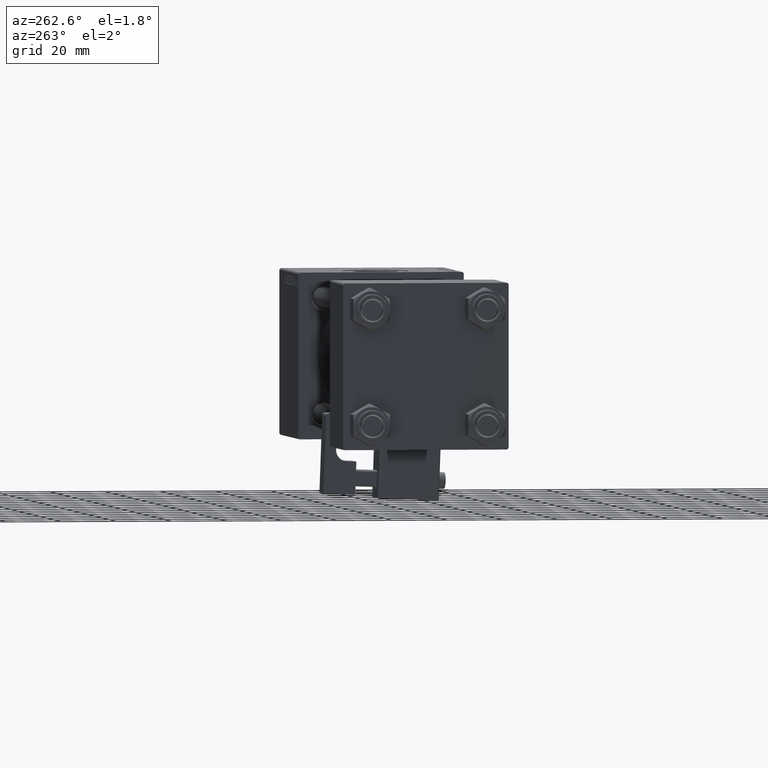
[diagram: clean part render]
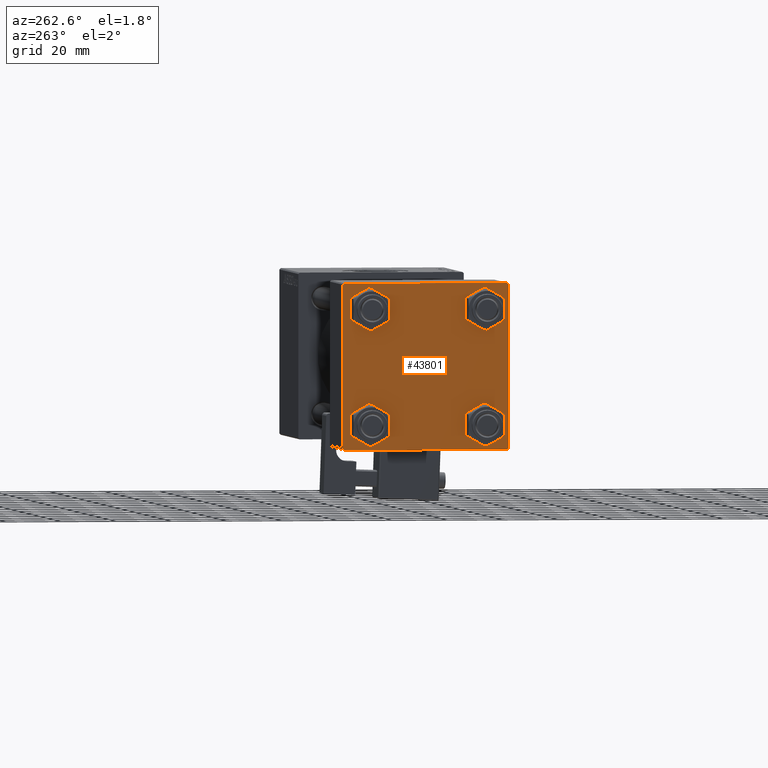
[diagram: same view with one face highlighted and labeled with its STEP entity id]
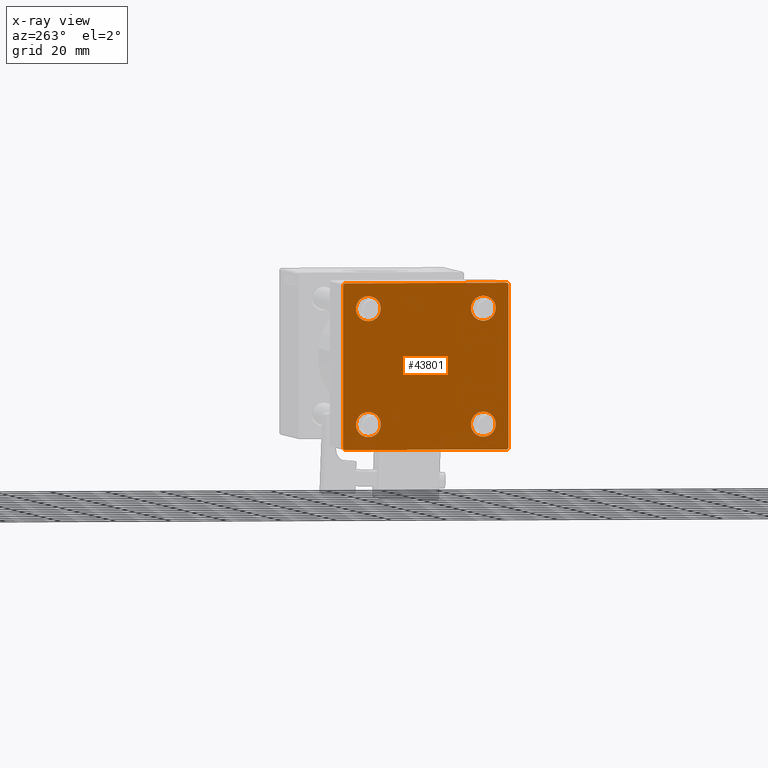
[diagram: x-ray of the same camera — body ghosted, the highlighted face saturated]
A machine part, auxiliary view. The second image highlights one B-rep face of the part: STEP entity #43801.
The next image is the same camera in x-ray: the body ghosted, the highlighted face saturated — about 0% of this face is hidden behind the body in this view.
In plain terms, the highlighted planar face has unit normal (-1, 0, 0).
Its self-contained STEP definition (entity closure, byte-faithful):
#82 = DIRECTION ( 'NONE',  ( 1.000000000000000000, -0.000000000000000000, 0.000000000000000000 ) ) ;
#261 = CARTESIAN_POINT ( 'NONE',  ( 0.000000000000000000, 0.000000000000000000, 0.000000000000000000 ) ) ;
#792 = VECTOR ( 'NONE', #48540, 1000.000000000000114 ) ;
#1134 = VERTEX_POINT ( 'NONE', #32080 ) ;
#1299 = VECTOR ( 'NONE', #19493, 1000.000000000000114 ) ;
#1392 = ORIENTED_EDGE ( 'NONE', *, *, #32577, .F. ) ;
#2276 = EDGE_LOOP ( 'NONE', ( #51343, #51702 ) ) ;
#2484 = DIRECTION ( 'NONE',  ( 0.000000000000000000, 0.000000000000000000, 1.000000000000000000 ) ) ;
#2767 = DIRECTION ( 'NONE',  ( 1.000000000000000000, -0.000000000000000000, 0.000000000000000000 ) ) ;
#3023 = EDGE_CURVE ( 'NONE', #19508, #19740, #31787, .T. ) ;
#3591 = DIRECTION ( 'NONE',  ( -0.000000000000000000, -0.7071067811865574537, -0.7071067811865376918 ) ) ;
#3730 = ORIENTED_EDGE ( 'NONE', *, *, #51377, .T. ) ;
#4304 = AXIS2_PLACEMENT_3D ( 'NONE', #9138, #34247, #22230 ) ;
#4306 = VERTEX_POINT ( 'NONE', #7058 ) ;
#4884 = CARTESIAN_POINT ( 'NONE',  ( 0.000000000000000000, 29.49999999999997868, -30.00000000000000000 ) ) ;
#5309 = VECTOR ( 'NONE', #12381, 1000.000000000000000 ) ;
#5982 = CARTESIAN_POINT ( 'NONE',  ( 0.000000000000000000, -30.00000000000000000, -29.50000000000001776 ) ) ;
#6038 = EDGE_CURVE ( 'NONE', #47357, #45809, #38962, .T. ) ;
#6713 = PLANE ( 'NONE',  #47497 ) ;
#7058 = CARTESIAN_POINT ( 'NONE',  ( 0.000000000000000000, -20.84999999999999076, 25.35000000000002274 ) ) ;
#7443 = CARTESIAN_POINT ( 'NONE',  ( 0.000000000000000000, 20.84999999999999787, 16.34999999999998366 ) ) ;
#8301 = CARTESIAN_POINT ( 'NONE',  ( 0.000000000000000000, 20.84999999999999787, 20.85000000000000142 ) ) ;
#9121 = CARTESIAN_POINT ( 'NONE',  ( 0.000000000000000000, -29.75000000000001066, -29.75000000000001066 ) ) ;
#9138 = CARTESIAN_POINT ( 'NONE',  ( 0.000000000000000000, -20.84999999999999076, 20.85000000000000497 ) ) ;
#9504 = CIRCLE ( 'NONE', #47872, 4.500000000000017764 ) ;
#9896 = ORIENTED_EDGE ( 'NONE', *, *, #22120, .T. ) ;
#10148 = CARTESIAN_POINT ( 'NONE',  ( 0.000000000000000000, 29.99999999999999289, 29.50000000000000000 ) ) ;
#10380 = VERTEX_POINT ( 'NONE', #17109 ) ;
#10824 = CARTESIAN_POINT ( 'NONE',  ( 0.000000000000000000, 29.74999999999957723, -29.75000000000040501 ) ) ;
#11339 = EDGE_CURVE ( 'NONE', #38864, #14979, #31128, .T. ) ;
#11345 = LINE ( 'NONE', #47932, #43441 ) ;
#12328 = ORIENTED_EDGE ( 'NONE', *, *, #28474, .T. ) ;
#12381 = DIRECTION ( 'NONE',  ( 0.000000000000000000, 0.000000000000000000, -1.000000000000000000 ) ) ;
#12849 = AXIS2_PLACEMENT_3D ( 'NONE', #47312, #26488, #35547 ) ;
#13547 = CARTESIAN_POINT ( 'NONE',  ( 0.000000000000000000, -20.84999999999999076, -16.34999999999998721 ) ) ;
#13684 = CIRCLE ( 'NONE', #4304, 4.500000000000017764 ) ;
#13832 = AXIS2_PLACEMENT_3D ( 'NONE', #24137, #82, #36140 ) ;
#14728 = FACE_BOUND ( 'NONE', #2276, .T. ) ;
#14935 = CARTESIAN_POINT ( 'NONE',  ( 0.000000000000000000, 20.84999999999999787, -20.85000000000000142 ) ) ;
#14979 = VERTEX_POINT ( 'NONE', #4884 ) ;
#16203 = VECTOR ( 'NONE', #45765, 1000.000000000000000 ) ;
#16562 = DIRECTION ( 'NONE',  ( -0.000000000000000000, 0.000000000000000000, 1.000000000000000000 ) ) ;
#16657 = LINE ( 'NONE', #27894, #5309 ) ;
#17109 = CARTESIAN_POINT ( 'NONE',  ( 0.000000000000000000, 20.84999999999999787, -25.35000000000001918 ) ) ;
#18658 = EDGE_LOOP ( 'NONE', ( #26330, #36232 ) ) ;
#19422 = ORIENTED_EDGE ( 'NONE', *, *, #26202, .T. ) ;
#19493 = DIRECTION ( 'NONE',  ( 0.000000000000000000, 0.7071067811865474617, -0.7071067811865474617 ) ) ;
#19508 = VERTEX_POINT ( 'NONE', #50420 ) ;
#19740 = VERTEX_POINT ( 'NONE', #10148 ) ;
#21381 = DIRECTION ( 'NONE',  ( 1.000000000000000000, -0.000000000000000000, 0.000000000000000000 ) ) ;
#21740 = EDGE_CURVE ( 'NONE', #1134, #10380, #41737, .T. ) ;
#22120 = EDGE_CURVE ( 'NONE', #52285, #29448, #22725, .T. ) ;
#22230 = DIRECTION ( 'NONE',  ( 0.000000000000000000, 0.000000000000000000, 1.000000000000000000 ) ) ;
#22725 = LINE ( 'NONE', #32257, #792 ) ;
#22746 = FACE_BOUND ( 'NONE', #30813, .T. ) ;
#22771 = AXIS2_PLACEMENT_3D ( 'NONE', #46203, #21381, #33930 ) ;
#23153 = CARTESIAN_POINT ( 'NONE',  ( 0.000000000000000000, -30.00000000000000000, 29.49999999999999289 ) ) ;
#23557 = ORIENTED_EDGE ( 'NONE', *, *, #11339, .T. ) ;
#23578 = CARTESIAN_POINT ( 'NONE',  ( 0.000000000000000000, 20.84999999999999787, -20.85000000000000142 ) ) ;
#23924 = VECTOR ( 'NONE', #49544, 1000.000000000000000 ) ;
#24137 = CARTESIAN_POINT ( 'NONE',  ( 0.000000000000000000, 20.84999999999999787, 20.85000000000000142 ) ) ;
#25369 = CIRCLE ( 'NONE', #47569, 4.500000000000017764 ) ;
#25931 = ORIENTED_EDGE ( 'NONE', *, *, #27133, .F. ) ;
#26202 = EDGE_CURVE ( 'NONE', #45809, #47357, #9504, .T. ) ;
#26253 = CARTESIAN_POINT ( 'NONE',  ( 0.000000000000000000, -20.84999999999999076, -25.35000000000002274 ) ) ;
#26330 = ORIENTED_EDGE ( 'NONE', *, *, #21740, .T. ) ;
#26488 = DIRECTION ( 'NONE',  ( 1.000000000000000000, -0.000000000000000000, 0.000000000000000000 ) ) ;
#26808 = CARTESIAN_POINT ( 'NONE',  ( 0.000000000000000000, -20.84999999999999076, -20.85000000000000497 ) ) ;
#27011 = FACE_OUTER_BOUND ( 'NONE', #52749, .T. ) ;
#27133 = EDGE_CURVE ( 'NONE', #19508, #29448, #36735, .T. ) ;
#27628 = CARTESIAN_POINT ( 'NONE',  ( 0.000000000000000000, 20.84999999999999787, 25.35000000000001918 ) ) ;
#27683 = EDGE_CURVE ( 'NONE', #45035, #4306, #32469, .T. ) ;
#27894 = CARTESIAN_POINT ( 'NONE',  ( 0.000000000000000000, -30.00000000000000000, 29.99999999999999289 ) ) ;
#28474 = EDGE_CURVE ( 'NONE', #4306, #45035, #13684, .T. ) ;
#28581 = DIRECTION ( 'NONE',  ( -1.000000000000000000, 0.000000000000000000, -0.000000000000000000 ) ) ;
#29448 = VERTEX_POINT ( 'NONE', #37146 ) ;
#30813 = EDGE_LOOP ( 'NONE', ( #12328, #34591 ) ) ;
#30940 = ORIENTED_EDGE ( 'NONE', *, *, #50285, .T. ) ;
#31023 = FACE_BOUND ( 'NONE', #51107, .T. ) ;
#31128 = LINE ( 'NONE', #10824, #48410 ) ;
#31787 = LINE ( 'NONE', #48323, #1299 ) ;
#31803 = EDGE_CURVE ( 'NONE', #42371, #41732, #33437, .T. ) ;
#32080 = CARTESIAN_POINT ( 'NONE',  ( 0.000000000000000000, 20.84999999999999787, -16.34999999999998366 ) ) ;
#32257 = CARTESIAN_POINT ( 'NONE',  ( -0.000000000000000000, -29.74999999999999645, 29.74999999999999645 ) ) ;
#32469 = CIRCLE ( 'NONE', #12849, 4.500000000000017764 ) ;
#32577 = EDGE_CURVE ( 'NONE', #52285, #38767, #16657, .T. ) ;
#32709 = VERTEX_POINT ( 'NONE', #47065 ) ;
#32872 = DIRECTION ( 'NONE',  ( 1.000000000000000000, -0.000000000000000000, 0.000000000000000000 ) ) ;
#33253 = CARTESIAN_POINT ( 'NONE',  ( 0.000000000000000000, 29.99999999999999289, 30.00000000000000000 ) ) ;
#33437 = CIRCLE ( 'NONE', #13832, 4.500000000000017764 ) ;
#33930 = DIRECTION ( 'NONE',  ( 0.000000000000000000, 0.000000000000000000, 1.000000000000000000 ) ) ;
#34227 = DIRECTION ( 'NONE',  ( 0.000000000000000000, -0.7071067811865474617, 0.7071067811865474617 ) ) ;
#34247 = DIRECTION ( 'NONE',  ( 1.000000000000000000, -0.000000000000000000, 0.000000000000000000 ) ) ;
#34529 = VECTOR ( 'NONE', #34227, 1000.000000000000114 ) ;
#34591 = ORIENTED_EDGE ( 'NONE', *, *, #27683, .T. ) ;
#35488 = DIRECTION ( 'NONE',  ( 0.000000000000000000, 0.000000000000000000, 1.000000000000000000 ) ) ;
#35547 = DIRECTION ( 'NONE',  ( 0.000000000000000000, 0.000000000000000000, 1.000000000000000000 ) ) ;
#36140 = DIRECTION ( 'NONE',  ( 0.000000000000000000, 0.000000000000000000, 1.000000000000000000 ) ) ;
#36232 = ORIENTED_EDGE ( 'NONE', *, *, #41630, .T. ) ;
#36735 = LINE ( 'NONE', #33253, #23924 ) ;
#37146 = CARTESIAN_POINT ( 'NONE',  ( 0.000000000000000000, -29.49999999999998579, 29.99999999999999289 ) ) ;
#37844 = DIRECTION ( 'NONE',  ( 0.000000000000000000, 0.000000000000000000, 1.000000000000000000 ) ) ;
#37846 = ORIENTED_EDGE ( 'NONE', *, *, #6038, .T. ) ;
#38702 = DIRECTION ( 'NONE',  ( 1.000000000000000000, -0.000000000000000000, 0.000000000000000000 ) ) ;
#38767 = VERTEX_POINT ( 'NONE', #5982 ) ;
#38864 = VERTEX_POINT ( 'NONE', #40415 ) ;
#38962 = CIRCLE ( 'NONE', #22771, 4.500000000000017764 ) ;
#39033 = FACE_BOUND ( 'NONE', #18658, .T. ) ;
#39170 = AXIS2_PLACEMENT_3D ( 'NONE', #23578, #43601, #2484 ) ;
#39623 = DIRECTION ( 'NONE',  ( 0.000000000000000000, 0.000000000000000000, 1.000000000000000000 ) ) ;
#39918 = DIRECTION ( 'NONE',  ( 0.000000000000000000, 0.000000000000000000, -1.000000000000000000 ) ) ;
#40415 = CARTESIAN_POINT ( 'NONE',  ( 0.000000000000000000, 29.99999999999999289, -29.50000000000000000 ) ) ;
#40527 = CIRCLE ( 'NONE', #46446, 4.500000000000017764 ) ;
#40728 = CARTESIAN_POINT ( 'NONE',  ( 0.000000000000000000, 29.99999999999999289, -30.00000000000000000 ) ) ;
#41168 = EDGE_CURVE ( 'NONE', #32709, #38767, #41958, .T. ) ;
#41630 = EDGE_CURVE ( 'NONE', #10380, #1134, #40527, .T. ) ;
#41732 = VERTEX_POINT ( 'NONE', #7443 ) ;
#41737 = CIRCLE ( 'NONE', #39170, 4.500000000000017764 ) ;
#41958 = LINE ( 'NONE', #9121, #34529 ) ;
#42371 = VERTEX_POINT ( 'NONE', #27628 ) ;
#43441 = VECTOR ( 'NONE', #39918, 1000.000000000000000 ) ;
#43601 = DIRECTION ( 'NONE',  ( 1.000000000000000000, -0.000000000000000000, 0.000000000000000000 ) ) ;
#43801 = ADVANCED_FACE ( 'NONE', ( #22746, #31023, #39033, #14728, #27011 ), #6713, .T. ) ;
#45035 = VERTEX_POINT ( 'NONE', #51068 ) ;
#45633 = EDGE_CURVE ( 'NONE', #41732, #42371, #25369, .T. ) ;
#45765 = DIRECTION ( 'NONE',  ( 0.000000000000000000, -1.000000000000000000, -1.156482317317871725E-16 ) ) ;
#45809 = VERTEX_POINT ( 'NONE', #13547 ) ;
#46203 = CARTESIAN_POINT ( 'NONE',  ( 0.000000000000000000, -20.84999999999999076, -20.85000000000000497 ) ) ;
#46446 = AXIS2_PLACEMENT_3D ( 'NONE', #14935, #38702, #35488 ) ;
#47065 = CARTESIAN_POINT ( 'NONE',  ( 0.000000000000000000, -29.50000000000000000, -30.00000000000000711 ) ) ;
#47312 = CARTESIAN_POINT ( 'NONE',  ( 0.000000000000000000, -20.84999999999999076, 20.85000000000000497 ) ) ;
#47357 = VERTEX_POINT ( 'NONE', #26253 ) ;
#47497 = AXIS2_PLACEMENT_3D ( 'NONE', #261, #28581, #16562 ) ;
#47569 = AXIS2_PLACEMENT_3D ( 'NONE', #8301, #32872, #37844 ) ;
#47872 = AXIS2_PLACEMENT_3D ( 'NONE', #26808, #2767, #39623 ) ;
#47932 = CARTESIAN_POINT ( 'NONE',  ( 0.000000000000000000, 29.99999999999999289, 30.00000000000000000 ) ) ;
#48122 = ORIENTED_EDGE ( 'NONE', *, *, #41168, .T. ) ;
#48323 = CARTESIAN_POINT ( 'NONE',  ( 0.000000000000000000, 29.74999999999999645, 29.74999999999999645 ) ) ;
#48410 = VECTOR ( 'NONE', #3591, 999.9999999999998863 ) ;
#48540 = DIRECTION ( 'NONE',  ( -0.000000000000000000, 0.7071067811865474617, 0.7071067811865474617 ) ) ;
#49544 = DIRECTION ( 'NONE',  ( 0.000000000000000000, -1.000000000000000000, -1.156482317317871725E-16 ) ) ;
#50052 = LINE ( 'NONE', #40728, #16203 ) ;
#50285 = EDGE_CURVE ( 'NONE', #19740, #38864, #11345, .T. ) ;
#50420 = CARTESIAN_POINT ( 'NONE',  ( 0.000000000000000000, 29.49999999999999289, 30.00000000000000000 ) ) ;
#50759 = ORIENTED_EDGE ( 'NONE', *, *, #3023, .T. ) ;
#51068 = CARTESIAN_POINT ( 'NONE',  ( 0.000000000000000000, -20.84999999999999076, 16.34999999999998721 ) ) ;
#51107 = EDGE_LOOP ( 'NONE', ( #19422, #37846 ) ) ;
#51343 = ORIENTED_EDGE ( 'NONE', *, *, #31803, .T. ) ;
#51377 = EDGE_CURVE ( 'NONE', #14979, #32709, #50052, .T. ) ;
#51702 = ORIENTED_EDGE ( 'NONE', *, *, #45633, .T. ) ;
#52285 = VERTEX_POINT ( 'NONE', #23153 ) ;
#52749 = EDGE_LOOP ( 'NONE', ( #30940, #23557, #3730, #48122, #1392, #9896, #25931, #50759 ) ) ;